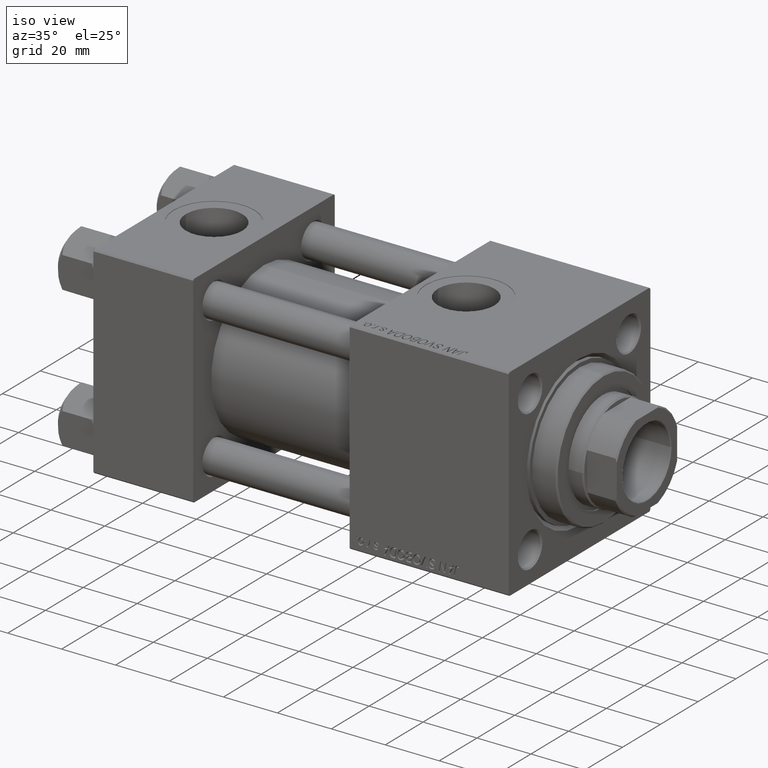
[diagram: clean part render]
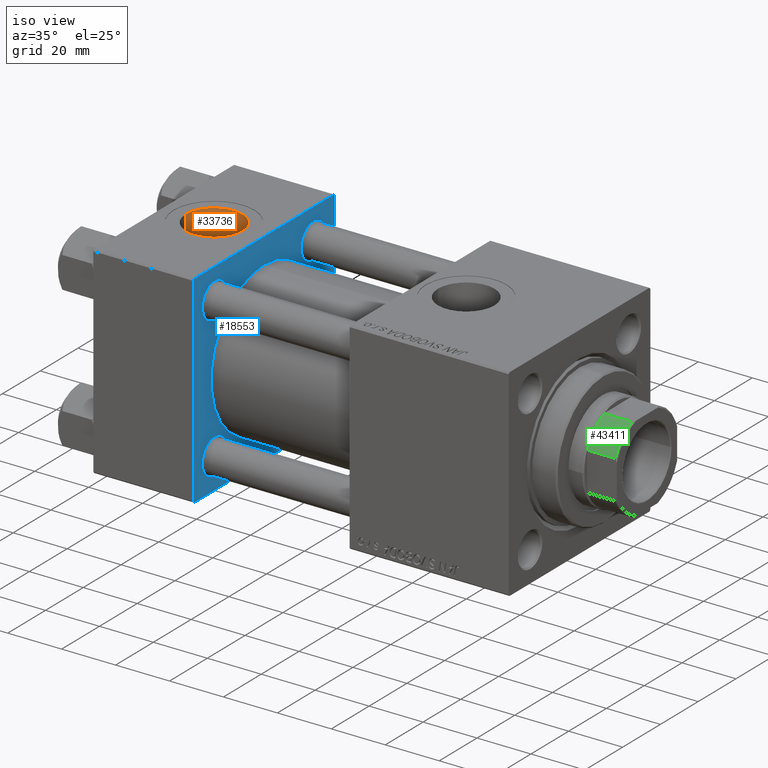
[diagram: same view with three faces highlighted in distinct colors, each labeled with its STEP entity id]
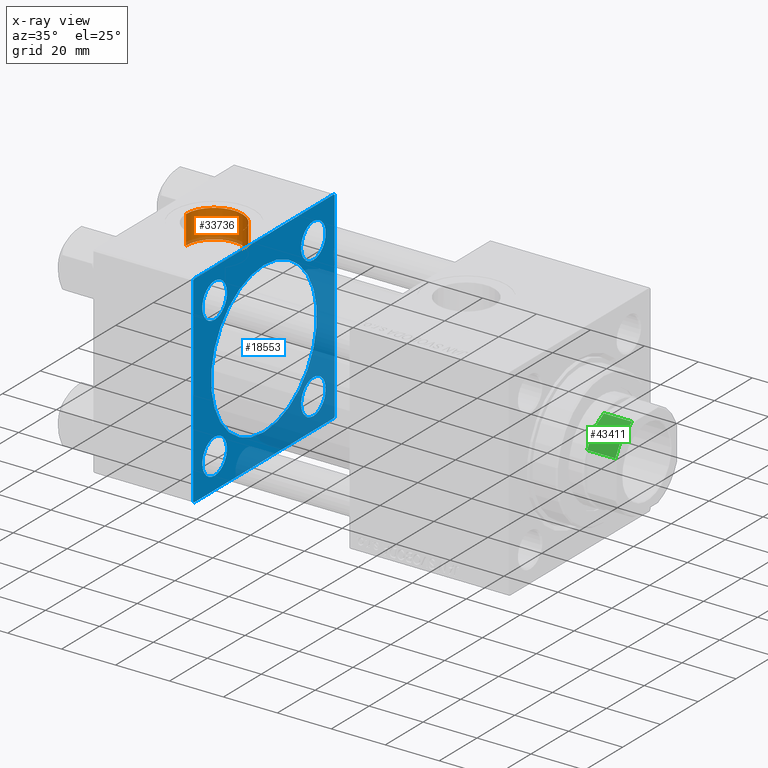
[diagram: x-ray of the same camera — body ghosted, the three highlighted faces saturated]
A machine part, iso view with three faces highlighted in distinct colors.
The next image is the same camera in x-ray (body ghosted, the three faces saturated) — at least one of them is partly hidden behind the body in this view.
Their STEP definitions:

[orange] entity #33736 — the highlighted cylindrical surface (edge-blend (fillet) strip) has radius 10.48 mm, axis along (0, 0, 1).
#56 = CYLINDRICAL_SURFACE ( 'NONE', #1795, 10.48000000000000043 ) ;
#521 = VERTEX_POINT ( 'NONE', #29666 ) ;
#566 = CARTESIAN_POINT ( 'NONE',  ( 18.50000000000000000, -5.204170427930421283E-15, 26.69999999999999929 ) ) ;
#1795 = AXIS2_PLACEMENT_3D ( 'NONE', #47493, #43943, #5372 ) ;
#3381 = EDGE_CURVE ( 'NONE', #33389, #35072, #5269, .T. ) ;
#4211 = ORIENTED_EDGE ( 'NONE', *, *, #7907, .F. ) ;
#5269 = LINE ( 'NONE', #29122, #37294 ) ;
#5372 = DIRECTION ( 'NONE',  ( 1.000000000000000000, 0.000000000000000000, 0.000000000000000000 ) ) ;
#5600 = CARTESIAN_POINT ( 'NONE',  ( 28.98000000000000043, -5.204170427930421283E-15, 26.69999999999999929 ) ) ;
#5851 = CARTESIAN_POINT ( 'NONE',  ( 28.98000000000000043, -5.204170427930421283E-15, 26.69999999999999929 ) ) ;
#6962 = CIRCLE ( 'NONE', #48304, 10.48000000000000043 ) ;
#7907 = EDGE_CURVE ( 'NONE', #45625, #33389, #38127, .T. ) ;
#9652 = LINE ( 'NONE', #5851, #32151 ) ;
#10005 = ORIENTED_EDGE ( 'NONE', *, *, #22393, .T. ) ;
#15388 = AXIS2_PLACEMENT_3D ( 'NONE', #566, #16540, #47007 ) ;
#16540 = DIRECTION ( 'NONE',  ( 0.000000000000000000, 0.000000000000000000, 1.000000000000000000 ) ) ;
#16978 = CARTESIAN_POINT ( 'NONE',  ( 18.50000000000000000, -5.204170427930421283E-15, 37.29999999999999716 ) ) ;
#20279 = DIRECTION ( 'NONE',  ( 0.000000000000000000, 0.000000000000000000, 1.000000000000000000 ) ) ;
#20708 = CARTESIAN_POINT ( 'NONE',  ( 8.019999999999999574, -3.920740582423995006E-15, 26.69999999999999929 ) ) ;
#21328 = DIRECTION ( 'NONE',  ( -0.000000000000000000, -0.000000000000000000, 1.000000000000000000 ) ) ;
#21483 = EDGE_CURVE ( 'NONE', #45625, #521, #9652, .T. ) ;
#22393 = EDGE_CURVE ( 'NONE', #521, #35072, #6962, .T. ) ;
#28876 = DIRECTION ( 'NONE',  ( -0.000000000000000000, -0.000000000000000000, 1.000000000000000000 ) ) ;
#29122 = CARTESIAN_POINT ( 'NONE',  ( 8.019999999999999574, -3.920740582423995006E-15, 26.69999999999999929 ) ) ;
#29666 = CARTESIAN_POINT ( 'NONE',  ( 28.98000000000000043, -5.204170427930421283E-15, 37.29999999999999716 ) ) ;
#31961 = DIRECTION ( 'NONE',  ( 1.000000000000000000, 0.000000000000000000, 0.000000000000000000 ) ) ;
#32016 = FACE_OUTER_BOUND ( 'NONE', #37204, .T. ) ;
#32151 = VECTOR ( 'NONE', #21328, 1000.000000000000000 ) ;
#33389 = VERTEX_POINT ( 'NONE', #20708 ) ;
#33736 = ADVANCED_FACE ( 'NONE', ( #32016 ), #56, .F. ) ;
#35072 = VERTEX_POINT ( 'NONE', #43737 ) ;
#37204 = EDGE_LOOP ( 'NONE', ( #45043, #4211, #40515, #10005 ) ) ;
#37294 = VECTOR ( 'NONE', #28876, 1000.000000000000000 ) ;
#38127 = CIRCLE ( 'NONE', #15388, 10.48000000000000043 ) ;
#40515 = ORIENTED_EDGE ( 'NONE', *, *, #21483, .T. ) ;
#43737 = CARTESIAN_POINT ( 'NONE',  ( 8.019999999999999574, -3.920740582423995006E-15, 37.29999999999999716 ) ) ;
#43943 = DIRECTION ( 'NONE',  ( -0.000000000000000000, -0.000000000000000000, 1.000000000000000000 ) ) ;
#45043 = ORIENTED_EDGE ( 'NONE', *, *, #3381, .F. ) ;
#45625 = VERTEX_POINT ( 'NONE', #5600 ) ;
#47007 = DIRECTION ( 'NONE',  ( 1.000000000000000000, 0.000000000000000000, 0.000000000000000000 ) ) ;
#47493 = CARTESIAN_POINT ( 'NONE',  ( 18.50000000000000000, -5.204170427930421283E-15, 26.69999999999999929 ) ) ;
#48304 = AXIS2_PLACEMENT_3D ( 'NONE', #16978, #20279, #31961 ) ;

[blue] entity #18553 — the highlighted planar face has unit normal (-1, 0, 0).
#308 = CARTESIAN_POINT ( 'NONE',  ( 37.00000000000000000, -2.602085213965210642E-15, 0.000000000000000000 ) ) ;
#338 = EDGE_LOOP ( 'NONE', ( #50015, #12024 ) ) ;
#406 = VERTEX_POINT ( 'NONE', #25095 ) ;
#973 = VERTEX_POINT ( 'NONE', #31538 ) ;
#1070 = CARTESIAN_POINT ( 'NONE',  ( 37.00000000000000000, 37.49999999999999289, -36.99999999999998579 ) ) ;
#1162 = ORIENTED_EDGE ( 'NONE', *, *, #45266, .T. ) ;
#1745 = ORIENTED_EDGE ( 'NONE', *, *, #33265, .T. ) ;
#2338 = FACE_BOUND ( 'NONE', #12974, .T. ) ;
#2808 = CARTESIAN_POINT ( 'NONE',  ( 37.00000000000000000, -26.14999999999999147, 32.65000000000001990 ) ) ;
#2848 = CARTESIAN_POINT ( 'NONE',  ( 37.00000000000000000, 0.000000000000000000, 0.000000000000000000 ) ) ;
#2993 = VECTOR ( 'NONE', #31517, 1000.000000000000000 ) ;
#3051 = ORIENTED_EDGE ( 'NONE', *, *, #28136, .T. ) ;
#3100 = VECTOR ( 'NONE', #17002, 1000.000000000000000 ) ;
#3146 = DIRECTION ( 'NONE',  ( -1.000000000000000000, 0.000000000000000000, -0.000000000000000000 ) ) ;
#3264 = EDGE_CURVE ( 'NONE', #973, #406, #11333, .T. ) ;
#3389 = DIRECTION ( 'NONE',  ( 0.000000000000000000, 0.000000000000000000, 1.000000000000000000 ) ) ;
#3734 = DIRECTION ( 'NONE',  ( -0.000000000000000000, 0.7071067811865474617, 0.7071067811865474617 ) ) ;
#4014 = DIRECTION ( 'NONE',  ( 0.000000000000000000, 0.000000000000000000, 1.000000000000000000 ) ) ;
#4185 = AXIS2_PLACEMENT_3D ( 'NONE', #9464, #9704, #21629 ) ;
#4500 = AXIS2_PLACEMENT_3D ( 'NONE', #2848, #29497, #41167 ) ;
#5191 = VERTEX_POINT ( 'NONE', #45078 ) ;
#6039 = VERTEX_POINT ( 'NONE', #17186 ) ;
#6123 = AXIS2_PLACEMENT_3D ( 'NONE', #6484, #14355, #33154 ) ;
#6484 = CARTESIAN_POINT ( 'NONE',  ( 37.00000000000000000, 26.14999999999999858, 26.15000000000000213 ) ) ;
#6792 = CARTESIAN_POINT ( 'NONE',  ( 37.00000000000000000, -37.00000000000002132, -37.50000000000000711 ) ) ;
#6955 = CARTESIAN_POINT ( 'NONE',  ( 37.00000000000000000, 37.49999999999999289, 37.50000000000000000 ) ) ;
#7050 = EDGE_CURVE ( 'NONE', #48225, #5191, #8061, .T. ) ;
#7178 = DIRECTION ( 'NONE',  ( -1.000000000000000000, 0.000000000000000000, -0.000000000000000000 ) ) ;
#8061 = CIRCLE ( 'NONE', #16989, 28.00000000000000000 ) ;
#8916 = DIRECTION ( 'NONE',  ( 1.000000000000000000, -0.000000000000000000, 0.000000000000000000 ) ) ;
#9464 = CARTESIAN_POINT ( 'NONE',  ( 37.00000000000000000, -26.14999999999999147, -26.15000000000000924 ) ) ;
#9704 = DIRECTION ( 'NONE',  ( -1.000000000000000000, 0.000000000000000000, -0.000000000000000000 ) ) ;
#9776 = EDGE_CURVE ( 'NONE', #406, #973, #22747, .T. ) ;
#9904 = ORIENTED_EDGE ( 'NONE', *, *, #25087, .T. ) ;
#10495 = LINE ( 'NONE', #6955, #35256 ) ;
#10636 = AXIS2_PLACEMENT_3D ( 'NONE', #10721, #7178, #14281 ) ;
#10705 = ORIENTED_EDGE ( 'NONE', *, *, #20096, .T. ) ;
#10721 = CARTESIAN_POINT ( 'NONE',  ( 37.00000000000000000, 26.14999999999999858, 26.15000000000000213 ) ) ;
#10990 = CIRCLE ( 'NONE', #20689, 6.500000000000002665 ) ;
#11144 = DIRECTION ( 'NONE',  ( 0.000000000000000000, 0.000000000000000000, 1.000000000000000000 ) ) ;
#11333 = CIRCLE ( 'NONE', #12928, 6.500000000000030198 ) ;
#11375 = DIRECTION ( 'NONE',  ( -1.000000000000000000, 0.000000000000000000, -0.000000000000000000 ) ) ;
#12014 = EDGE_CURVE ( 'NONE', #33697, #13974, #18762, .T. ) ;
#12024 = ORIENTED_EDGE ( 'NONE', *, *, #9776, .T. ) ;
#12023 = CARTESIAN_POINT ( 'NONE',  ( 37.00000000000000000, -37.00000000000002132, -37.50000000000000711 ) ) ;
#12213 = VERTEX_POINT ( 'NONE', #2808 ) ;
#12252 = CARTESIAN_POINT ( 'NONE',  ( 37.00000000000000000, -26.14999999999999147, -26.15000000000000924 ) ) ;
#12459 = CARTESIAN_POINT ( 'NONE',  ( 37.00000000000000000, 26.14999999999999858, 32.65000000000004121 ) ) ;
#12928 = AXIS2_PLACEMENT_3D ( 'NONE', #43092, #11375, #4014 ) ;
#12974 = EDGE_LOOP ( 'NONE', ( #37662, #33854 ) ) ;
#13232 = EDGE_LOOP ( 'NONE', ( #39446, #10705, #15702, #32720, #34605, #1162, #46897, #1745 ) ) ;
#13290 = LINE ( 'NONE', #20910, #15898 ) ;
#13655 = LINE ( 'NONE', #6792, #46390 ) ;
#13974 = VERTEX_POINT ( 'NONE', #14457 ) ;
#14006 = PLANE ( 'NONE',  #4500 ) ;
#14281 = DIRECTION ( 'NONE',  ( 0.000000000000000000, 0.000000000000000000, 1.000000000000000000 ) ) ;
#14355 = DIRECTION ( 'NONE',  ( -1.000000000000000000, 0.000000000000000000, -0.000000000000000000 ) ) ;
#14457 = CARTESIAN_POINT ( 'NONE',  ( 37.00000000000000000, 26.14999999999999858, 19.64999999999997016 ) ) ;
#14841 = ORIENTED_EDGE ( 'NONE', *, *, #18395, .T. ) ;
#14877 = CARTESIAN_POINT ( 'NONE',  ( 37.00000000000000000, -26.14999999999999147, 26.15000000000000924 ) ) ;
#15041 = EDGE_LOOP ( 'NONE', ( #3051, #9904 ) ) ;
#15284 = DIRECTION ( 'NONE',  ( 0.000000000000000000, 0.000000000000000000, 1.000000000000000000 ) ) ;
#15449 = DIRECTION ( 'NONE',  ( -1.000000000000000000, 0.000000000000000000, -0.000000000000000000 ) ) ;
#15702 = ORIENTED_EDGE ( 'NONE', *, *, #27553, .F. ) ;
#15781 = DIRECTION ( 'NONE',  ( 0.000000000000000000, 0.000000000000000000, 1.000000000000000000 ) ) ;
#15898 = VECTOR ( 'NONE', #20404, 1000.000000000000114 ) ;
#16406 = CARTESIAN_POINT ( 'NONE',  ( 37.00000000000000000, 36.99999999999999289, 37.50000000000000000 ) ) ;
#16989 = AXIS2_PLACEMENT_3D ( 'NONE', #308, #8916, #15781 ) ;
#17002 = DIRECTION ( 'NONE',  ( 0.000000000000000000, 0.000000000000000000, -1.000000000000000000 ) ) ;
#17186 = CARTESIAN_POINT ( 'NONE',  ( 37.00000000000000000, -26.14999999999999147, -19.65000000000000924 ) ) ;
#17313 = FACE_BOUND ( 'NONE', #338, .T. ) ;
#17676 = CIRCLE ( 'NONE', #46057, 6.500000000000008882 ) ;
#17809 = FACE_BOUND ( 'NONE', #25574, .T. ) ;
#18395 = EDGE_CURVE ( 'NONE', #24706, #6039, #10990, .T. ) ;
#18553 = ADVANCED_FACE ( 'NONE', ( #33815, #17313, #32809, #2338, #17809, #48787 ), #14006, .F. ) ;
#18762 = CIRCLE ( 'NONE', #10636, 6.500000000000030198 ) ;
#19605 = VECTOR ( 'NONE', #45869, 1000.000000000000000 ) ;
#19878 = AXIS2_PLACEMENT_3D ( 'NONE', #30783, #49817, #15284 ) ;
#20096 = EDGE_CURVE ( 'NONE', #35371, #31830, #23011, .T. ) ;
#20404 = DIRECTION ( 'NONE',  ( 0.000000000000000000, -0.7071067811865474617, 0.7071067811865474617 ) ) ;
#20689 = AXIS2_PLACEMENT_3D ( 'NONE', #12252, #32567, #31804 ) ;
#20910 = CARTESIAN_POINT ( 'NONE',  ( 37.00000000000000000, 36.99999999999999289, 37.50000000000000000 ) ) ;
#21323 = CARTESIAN_POINT ( 'NONE',  ( 37.00000000000000000, 36.99999999999997868, -37.50000000000000000 ) ) ;
#21386 = EDGE_CURVE ( 'NONE', #5191, #48225, #47544, .T. ) ;
#21417 = EDGE_CURVE ( 'NONE', #22184, #50026, #40381, .T. ) ;
#21629 = DIRECTION ( 'NONE',  ( 0.000000000000000000, 0.000000000000000000, 1.000000000000000000 ) ) ;
#22184 = VERTEX_POINT ( 'NONE', #30551 ) ;
#22261 = CARTESIAN_POINT ( 'NONE',  ( 37.00000000000000000, 37.49999999999999289, -36.99999999999998579 ) ) ;
#22747 = CIRCLE ( 'NONE', #35721, 6.500000000000030198 ) ;
#22847 = EDGE_CURVE ( 'NONE', #13974, #33697, #45028, .T. ) ;
#23011 = LINE ( 'NONE', #22261, #39429 ) ;
#23509 = LINE ( 'NONE', #30658, #19605 ) ;
#24706 = VERTEX_POINT ( 'NONE', #42670 ) ;
#25087 = EDGE_CURVE ( 'NONE', #12213, #45295, #38635, .T. ) ;
#25095 = CARTESIAN_POINT ( 'NONE',  ( 37.00000000000000000, 26.14999999999999858, -19.64999999999997371 ) ) ;
#25574 = EDGE_LOOP ( 'NONE', ( #37328, #43951 ) ) ;
#27553 = EDGE_CURVE ( 'NONE', #31443, #31830, #47212, .T. ) ;
#28136 = EDGE_CURVE ( 'NONE', #45295, #12213, #17676, .T. ) ;
#29294 = CARTESIAN_POINT ( 'NONE',  ( 37.00000000000000000, 8.269258236473776482E-16, -28.00000000000000000 ) ) ;
#29497 = DIRECTION ( 'NONE',  ( -1.000000000000000000, 0.000000000000000000, -0.000000000000000000 ) ) ;
#29970 = CARTESIAN_POINT ( 'NONE',  ( 37.00000000000000000, -37.50000000000000000, -37.00000000000003553 ) ) ;
#30048 = CARTESIAN_POINT ( 'NONE',  ( 37.00000000000000000, 26.14999999999999858, -26.15000000000000213 ) ) ;
#30461 = CARTESIAN_POINT ( 'NONE',  ( 37.00000000000000000, -26.14999999999999147, 26.15000000000000924 ) ) ;
#30551 = CARTESIAN_POINT ( 'NONE',  ( 37.00000000000000000, -37.50000000000000711, 36.99999999999999289 ) ) ;
#30658 = CARTESIAN_POINT ( 'NONE',  ( 37.00000000000000000, 37.49999999999999289, -37.50000000000000000 ) ) ;
#30783 = CARTESIAN_POINT ( 'NONE',  ( 37.00000000000000000, -2.602085213965210642E-15, 0.000000000000000000 ) ) ;
#30815 = DIRECTION ( 'NONE',  ( 0.000000000000000000, -1.000000000000000000, -9.251858538542971581E-17 ) ) ;
#30971 = CIRCLE ( 'NONE', #4185, 6.500000000000002665 ) ;
#31443 = VERTEX_POINT ( 'NONE', #32612 ) ;
#31517 = DIRECTION ( 'NONE',  ( 0.000000000000000000, 9.251858538542971581E-17, -1.000000000000000000 ) ) ;
#31538 = CARTESIAN_POINT ( 'NONE',  ( 37.00000000000000000, 26.14999999999999858, -32.65000000000003411 ) ) ;
#31804 = DIRECTION ( 'NONE',  ( 0.000000000000000000, 0.000000000000000000, 1.000000000000000000 ) ) ;
#31830 = VERTEX_POINT ( 'NONE', #1070 ) ;
#32567 = DIRECTION ( 'NONE',  ( -1.000000000000000000, 0.000000000000000000, -0.000000000000000000 ) ) ;
#32583 = EDGE_CURVE ( 'NONE', #6039, #24706, #30971, .T. ) ;
#32612 = CARTESIAN_POINT ( 'NONE',  ( 37.00000000000000000, 37.49999999999999289, 37.00000000000000000 ) ) ;
#32720 = ORIENTED_EDGE ( 'NONE', *, *, #47203, .T. ) ;
#32809 = FACE_BOUND ( 'NONE', #15041, .T. ) ;
#33154 = DIRECTION ( 'NONE',  ( 0.000000000000000000, 0.000000000000000000, 1.000000000000000000 ) ) ;
#33265 = EDGE_CURVE ( 'NONE', #50026, #46419, #13655, .T. ) ;
#33330 = EDGE_CURVE ( 'NONE', #35371, #46419, #23509, .T. ) ;
#33354 = DIRECTION ( 'NONE',  ( -0.000000000000000000, -0.7071067811865474617, -0.7071067811865474617 ) ) ;
#33697 = VERTEX_POINT ( 'NONE', #12459 ) ;
#33815 = FACE_BOUND ( 'NONE', #38866, .T. ) ;
#33854 = ORIENTED_EDGE ( 'NONE', *, *, #12014, .T. ) ;
#34605 = ORIENTED_EDGE ( 'NONE', *, *, #45409, .T. ) ;
#35256 = VECTOR ( 'NONE', #30815, 1000.000000000000000 ) ;
#35371 = VERTEX_POINT ( 'NONE', #21323 ) ;
#35721 = AXIS2_PLACEMENT_3D ( 'NONE', #30048, #3146, #3389 ) ;
#35920 = CARTESIAN_POINT ( 'NONE',  ( 37.00000000000000000, -37.50000000000000711, 36.99999999999999289 ) ) ;
#36433 = CARTESIAN_POINT ( 'NONE',  ( 37.00000000000000000, -26.14999999999999147, 19.65000000000000213 ) ) ;
#36895 = VECTOR ( 'NONE', #33354, 1000.000000000000114 ) ;
#36903 = ORIENTED_EDGE ( 'NONE', *, *, #32583, .T. ) ;
#37328 = ORIENTED_EDGE ( 'NONE', *, *, #21386, .F. ) ;
#37662 = ORIENTED_EDGE ( 'NONE', *, *, #22847, .T. ) ;
#38635 = CIRCLE ( 'NONE', #48376, 6.500000000000008882 ) ;
#38866 = EDGE_LOOP ( 'NONE', ( #14841, #36903 ) ) ;
#38965 = VERTEX_POINT ( 'NONE', #42068 ) ;
#39429 = VECTOR ( 'NONE', #3734, 1000.000000000000114 ) ;
#39446 = ORIENTED_EDGE ( 'NONE', *, *, #33330, .F. ) ;
#40381 = LINE ( 'NONE', #43940, #2993 ) ;
#41167 = DIRECTION ( 'NONE',  ( -0.000000000000000000, 0.000000000000000000, 1.000000000000000000 ) ) ;
#41540 = DIRECTION ( 'NONE',  ( -1.000000000000000000, 0.000000000000000000, -0.000000000000000000 ) ) ;
#41564 = DIRECTION ( 'NONE',  ( 0.000000000000000000, 0.7071067811865524577, -0.7071067811865426878 ) ) ;
#42068 = CARTESIAN_POINT ( 'NONE',  ( 37.00000000000000000, -37.00000000000000711, 37.49999999999999289 ) ) ;
#42670 = CARTESIAN_POINT ( 'NONE',  ( 37.00000000000000000, -26.14999999999999147, -32.65000000000001279 ) ) ;
#43031 = LINE ( 'NONE', #35920, #36895 ) ;
#43092 = CARTESIAN_POINT ( 'NONE',  ( 37.00000000000000000, 26.14999999999999858, -26.15000000000000213 ) ) ;
#43654 = CARTESIAN_POINT ( 'NONE',  ( 37.00000000000000000, 37.49999999999999289, 37.50000000000000000 ) ) ;
#43940 = CARTESIAN_POINT ( 'NONE',  ( 37.00000000000000000, -37.50000000000000711, 37.49999999999999289 ) ) ;
#43951 = ORIENTED_EDGE ( 'NONE', *, *, #7050, .F. ) ;
#45028 = CIRCLE ( 'NONE', #6123, 6.500000000000030198 ) ;
#45078 = CARTESIAN_POINT ( 'NONE',  ( 37.00000000000000000, -2.602085213965210642E-15, 28.00000000000000000 ) ) ;
#45266 = EDGE_CURVE ( 'NONE', #38965, #22184, #43031, .T. ) ;
#45295 = VERTEX_POINT ( 'NONE', #36433 ) ;
#45409 = EDGE_CURVE ( 'NONE', #47684, #38965, #10495, .T. ) ;
#45869 = DIRECTION ( 'NONE',  ( 0.000000000000000000, -1.000000000000000000, -9.251858538542972814E-17 ) ) ;
#46057 = AXIS2_PLACEMENT_3D ( 'NONE', #14877, #41540, #49913 ) ;
#46390 = VECTOR ( 'NONE', #41564, 1000.000000000000000 ) ;
#46419 = VERTEX_POINT ( 'NONE', #12023 ) ;
#46897 = ORIENTED_EDGE ( 'NONE', *, *, #21417, .T. ) ;
#47203 = EDGE_CURVE ( 'NONE', #31443, #47684, #13290, .T. ) ;
#47212 = LINE ( 'NONE', #43654, #3100 ) ;
#47544 = CIRCLE ( 'NONE', #19878, 28.00000000000000000 ) ;
#47684 = VERTEX_POINT ( 'NONE', #16406 ) ;
#48225 = VERTEX_POINT ( 'NONE', #29294 ) ;
#48376 = AXIS2_PLACEMENT_3D ( 'NONE', #30461, #15449, #11144 ) ;
#48787 = FACE_OUTER_BOUND ( 'NONE', #13232, .T. ) ;
#49817 = DIRECTION ( 'NONE',  ( 1.000000000000000000, -0.000000000000000000, 0.000000000000000000 ) ) ;
#49913 = DIRECTION ( 'NONE',  ( 0.000000000000000000, 0.000000000000000000, 1.000000000000000000 ) ) ;
#50015 = ORIENTED_EDGE ( 'NONE', *, *, #3264, .T. ) ;
#50026 = VERTEX_POINT ( 'NONE', #29970 ) ;

[green] entity #43411 — the highlighted cylindrical surface (partial cylindrical patch) has radius 17.5 mm, axis along (1, 0, 0).
#1457 = DIRECTION ( 'NONE',  ( -0.000000000000000000, -0.000000000000000000, 1.000000000000000000 ) ) ;
#4116 = ORIENTED_EDGE ( 'NONE', *, *, #6147, .F. ) ;
#4646 = CARTESIAN_POINT ( 'NONE',  ( 0.000000000000000000, 0.000000000000000000, 141.5000000000000284 ) ) ;
#4805 = DIRECTION ( 'NONE',  ( 0.000000000000000000, 0.000000000000000000, 1.000000000000000000 ) ) ;
#5615 = ORIENTED_EDGE ( 'NONE', *, *, #16751, .T. ) ;
#6147 = EDGE_CURVE ( 'NONE', #39270, #38506, #39280, .T. ) ;
#6545 = CARTESIAN_POINT ( 'NONE',  ( 15.99999999999999645, -7.088723439378925129, 141.5000000000000284 ) ) ;
#9053 = DIRECTION ( 'NONE',  ( 1.000000000000000000, 0.000000000000000000, 0.000000000000000000 ) ) ;
#11107 = ORIENTED_EDGE ( 'NONE', *, *, #15254, .T. ) ;
#14142 = CARTESIAN_POINT ( 'NONE',  ( 15.99999999999999645, -7.088723439378925129, 131.0000000000000284 ) ) ;
#15011 = CIRCLE ( 'NONE', #35261, 17.50000000000000000 ) ;
#15254 = EDGE_CURVE ( 'NONE', #39270, #38032, #45736, .T. ) ;
#16026 = LINE ( 'NONE', #22660, #18302 ) ;
#16454 = DIRECTION ( 'NONE',  ( 1.000000000000000000, 0.000000000000000000, 0.000000000000000000 ) ) ;
#16751 = EDGE_CURVE ( 'NONE', #36284, #38506, #15011, .T. ) ;
#18302 = VECTOR ( 'NONE', #31526, 1000.000000000000000 ) ;
#22149 = EDGE_CURVE ( 'NONE', #38032, #36284, #16026, .T. ) ;
#22660 = CARTESIAN_POINT ( 'NONE',  ( 15.99999999999999645, -7.088723439378925129, -0.001000000000001000089 ) ) ;
#28342 = CARTESIAN_POINT ( 'NONE',  ( 7.088723439378915359, -16.00000000000000000, 131.0000000000000284 ) ) ;
#28406 = CARTESIAN_POINT ( 'NONE',  ( 0.000000000000000000, 0.000000000000000000, 131.0000000000000000 ) ) ;
#31526 = DIRECTION ( 'NONE',  ( -0.000000000000000000, -0.000000000000000000, 1.000000000000000000 ) ) ;
#31799 = DIRECTION ( 'NONE',  ( 1.000000000000000000, 0.000000000000000000, 0.000000000000000000 ) ) ;
#32913 = CARTESIAN_POINT ( 'NONE',  ( 0.000000000000000000, 0.000000000000000000, -0.001000000000001000089 ) ) ;
#33195 = ORIENTED_EDGE ( 'NONE', *, *, #22149, .T. ) ;
#35261 = AXIS2_PLACEMENT_3D ( 'NONE', #4646, #38670, #31799 ) ;
#36236 = CARTESIAN_POINT ( 'NONE',  ( 7.088723439378915359, -16.00000000000000000, -0.001000000000001000089 ) ) ;
#36284 = VERTEX_POINT ( 'NONE', #6545 ) ;
#38032 = VERTEX_POINT ( 'NONE', #14142 ) ;
#38506 = VERTEX_POINT ( 'NONE', #39120 ) ;
#38670 = DIRECTION ( 'NONE',  ( -0.000000000000000000, -0.000000000000000000, -1.000000000000000000 ) ) ;
#39120 = CARTESIAN_POINT ( 'NONE',  ( 7.088723439378915359, -16.00000000000000000, 141.5000000000000284 ) ) ;
#39270 = VERTEX_POINT ( 'NONE', #28342 ) ;
#39280 = LINE ( 'NONE', #36236, #40580 ) ;
#40580 = VECTOR ( 'NONE', #1457, 1000.000000000000000 ) ;
#40768 = CYLINDRICAL_SURFACE ( 'NONE', #49030, 17.50000000000000000 ) ;
#40838 = AXIS2_PLACEMENT_3D ( 'NONE', #28406, #4805, #16454 ) ;
#42698 = EDGE_LOOP ( 'NONE', ( #33195, #5615, #4116, #11107 ) ) ;
#43411 = ADVANCED_FACE ( 'NONE', ( #48884 ), #40768, .T. ) ;
#44577 = DIRECTION ( 'NONE',  ( -0.000000000000000000, -0.000000000000000000, 1.000000000000000000 ) ) ;
#45736 = CIRCLE ( 'NONE', #40838, 17.50000000000003908 ) ;
#48884 = FACE_OUTER_BOUND ( 'NONE', #42698, .T. ) ;
#49030 = AXIS2_PLACEMENT_3D ( 'NONE', #32913, #44577, #9053 ) ;